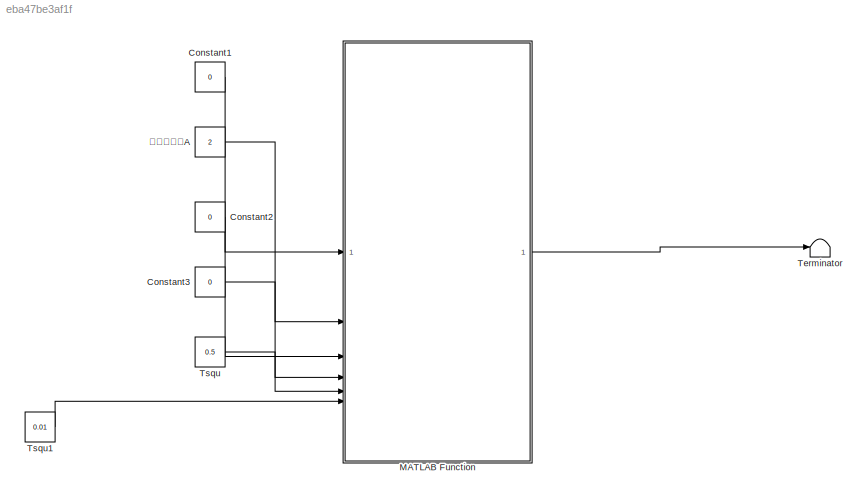
MODEL slx_eba47be3af1f
KIND model
CONFIG AbsTol = auto
CONFIG EnableMultiTasking = off
CONFIG FixedStep = auto
CONFIG MaxStep = auto
CONFIG MinStep = auto
CONFIG RelTol = 1e-3
CONFIG SampleTimeConstraint = Unconstrained
CONFIG SolverName = VariableStepAuto
CONFIG StartTime = 0.0
CONFIG StopTime = 0.5
BLOCK [Constant] Constant1
  Value = 0
BLOCK [Constant] Constant2
  Value = 0
BLOCK [Constant] Constant3
  Value = 0
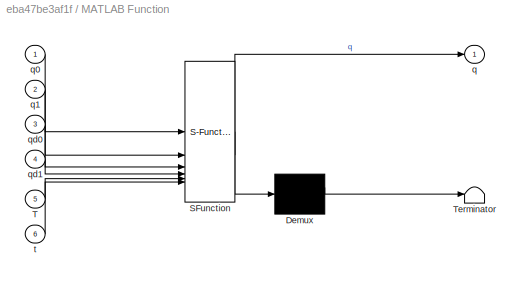
BLOCK [SubSystem] MATLAB Function
  ErrorFcn = Stateflow.Translate.translate
  LibrarySourceBlock = simulink/User-Defined\nFunctions/MATLAB Function
  PermitHierarchicalResolution = ExplicitOnly
  SFBlockType = MATLAB Function
  TreatAsAtomicUnit = on
BLOCK [Demux] MATLAB Function/ Demux 
  Outputs = 1
BLOCK [S-Function] MATLAB Function/ SFunction 
  EnableBusSupport = on
  FunctionName = sf_sfun
  PortCounts = [6 2]
  SFcnIsStateOwnerBlock = off
  SFunctionDeploymentMode = off
  Tag = Stateflow S-Function 1
BLOCK [Terminator] MATLAB Function/ Terminator 
BLOCK [Inport] MATLAB Function/T
  Port = 5
BLOCK [Outport] MATLAB Function/q
BLOCK [Inport] MATLAB Function/q0
BLOCK [Inport] MATLAB Function/q1
  Port = 2
BLOCK [Inport] MATLAB Function/qd0
  Port = 3
BLOCK [Inport] MATLAB Function/qd1
  Port = 4
BLOCK [Inport] MATLAB Function/t
  Port = 6
BLOCK [Terminator] Terminator
BLOCK [Constant] Tsqu
  Value = 0.5
BLOCK [Constant] Tsqu1
  Value = 0.01
BLOCK [Constant] 高度变化量A
  Value = 2
LINE Constant1:1 -> MATLAB Function:1
LINE Constant2:1 -> MATLAB Function:3
LINE Constant3:1 -> MATLAB Function:4
LINE MATLAB Function:1 -> Terminator:1
LINE Tsqu1:1 -> MATLAB Function:6
LINE Tsqu:1 -> MATLAB Function:5
LINE 高度变化量A:1 -> MATLAB Function:2
CHART MATLAB Function states=1 transitions=1
  STATE_LABEL 'eML_blk_kernel()'
  STATE_LABEL "SCRIPT:\nfunction q  = Cubic_polynomial_interpolation(q0, q1, qd0, qd1, T, t)\n    % 给定初末位置、速度、总时间，返回三次插值后，在时间t（0<t<T）的位置、速度、加速度，t也可以是时间序列\n    A = [  0  ,  0 , 0, 1;\n         T^3  , T^2, T, 1;\n         0    ,  0 , 1, 0;\n         3*T^2, 2*T, 1, 0];\n    \n    B = [q0; q1; qd0; qd1];\n    \n    % 求解系数矩阵\n    p = A \\ B;\n\n    % 计算位置、速度、加速度\n    q = p(1, :)' * t.^3 + p(2, :)' * t.^2 + p(3, :)' * t + p(4, :)';\n...<+107ch>"
CHART  states=0 transitions=0
